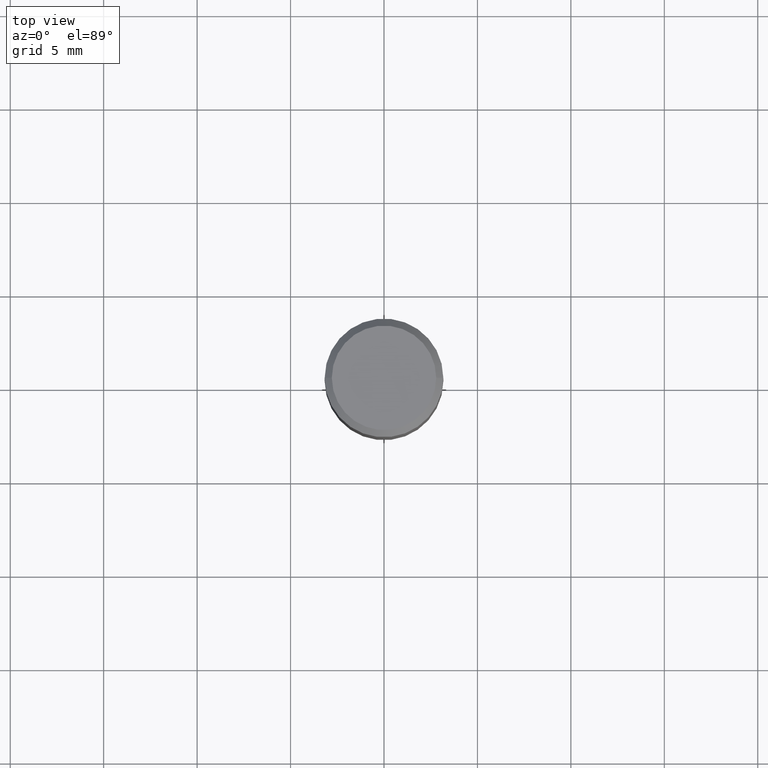
[diagram: clean part render]
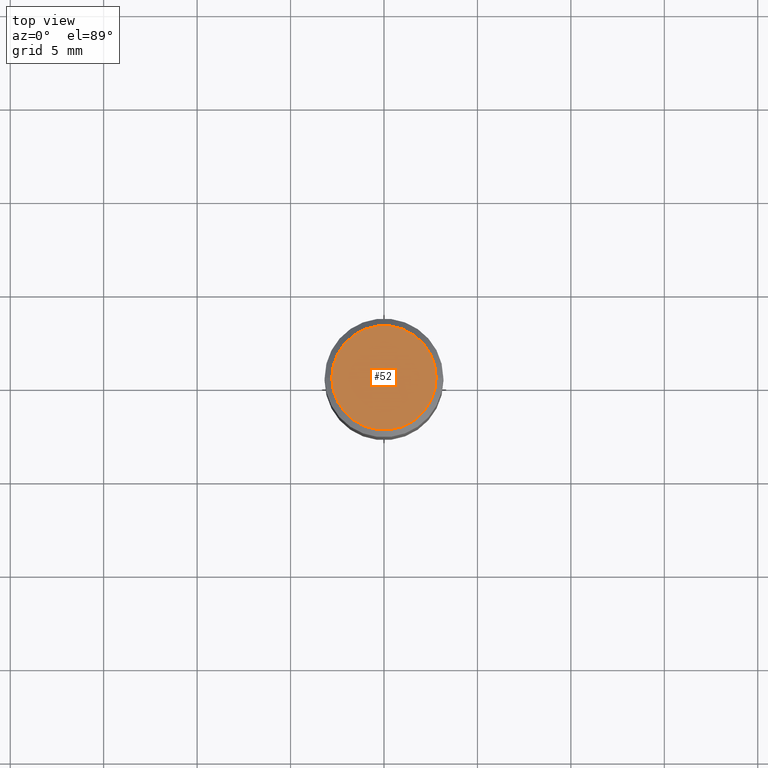
[diagram: same view with one face highlighted and labeled with its STEP entity id]
A machine part, top view. The second image highlights one B-rep face of the part: STEP entity #52.
In plain terms, the highlighted planar face has unit normal (0, -0, -1).
Its self-contained STEP definition (entity closure, byte-faithful):
#26 = DIRECTION ( 'NONE',  ( 1.000000000000000000, -6.982962677686266711E-15, 4.873416144172425341E-29 ) ) ;
#30 = AXIS2_PLACEMENT_3D ( 'NONE', #191, #206, #459 ) ;
#33 = ORIENTED_EDGE ( 'NONE', *, *, #146, .T. ) ;
#36 = CARTESIAN_POINT ( 'NONE',  ( -0.1100000000000000006, 7.943120045868128186E-16, 5.464378949326430820E-17 ) ) ;
#52 = ADVANCED_FACE ( 'NONE', ( #202 ), #276, .F. ) ;
#58 = DIRECTION ( 'NONE',  ( -2.445468806185136597E-29, 3.491481338843145583E-15, 1.000000000000000000 ) ) ;
#68 = ORIENTED_EDGE ( 'NONE', *, *, #170, .T. ) ;
#95 = AXIS2_PLACEMENT_3D ( 'NONE', #336, #58, #26 ) ;
#136 = DIRECTION ( 'NONE',  ( -2.445468806185136597E-29, 3.491481338843145583E-15, 1.000000000000000000 ) ) ;
#143 = VERTEX_POINT ( 'NONE', #438 ) ;
#146 = EDGE_CURVE ( 'NONE', #205, #143, #352, .T. ) ;
#162 = AXIS2_PLACEMENT_3D ( 'NONE', #280, #136, #326 ) ;
#170 = EDGE_CURVE ( 'NONE', #143, #205, #401, .T. ) ;
#191 = CARTESIAN_POINT ( 'NONE',  ( 7.681258945454893776E-16, 0.1100000000000000006, -3.567410525261111604E-16 ) ) ;
#202 = FACE_OUTER_BOUND ( 'NONE', #385, .T. ) ;
#205 = VERTEX_POINT ( 'NONE', #36 ) ;
#206 = DIRECTION ( 'NONE',  ( 2.438088387897960049E-29, -3.491481338843145188E-15, -1.000000000000000000 ) ) ;
#276 = PLANE ( 'NONE',  #30 ) ;
#280 = CARTESIAN_POINT ( 'NONE',  ( -1.336296826575383585E-45, 1.907877712994245642E-31, 5.464378949326977476E-17 ) ) ;
#326 = DIRECTION ( 'NONE',  ( 1.000000000000000000, -6.982962677686266711E-15, 4.873416144172425341E-29 ) ) ;
#336 = CARTESIAN_POINT ( 'NONE',  ( -1.336296826575383585E-45, 1.907877712994245642E-31, 5.464378949326977476E-17 ) ) ;
#352 = CIRCLE ( 'NONE', #95, 0.1100000000000000006 ) ;
#385 = EDGE_LOOP ( 'NONE', ( #33, #68 ) ) ;
#401 = CIRCLE ( 'NONE', #162, 0.1100000000000000006 ) ;
#438 = CARTESIAN_POINT ( 'NONE',  ( 0.1100000000000000006, -8.322946247794783877E-16, 5.464378949327537075E-17 ) ) ;
#459 = DIRECTION ( 'NONE',  ( -1.000000000000000000, 6.982962677686265922E-15, -4.876176775795935793E-29 ) ) ;